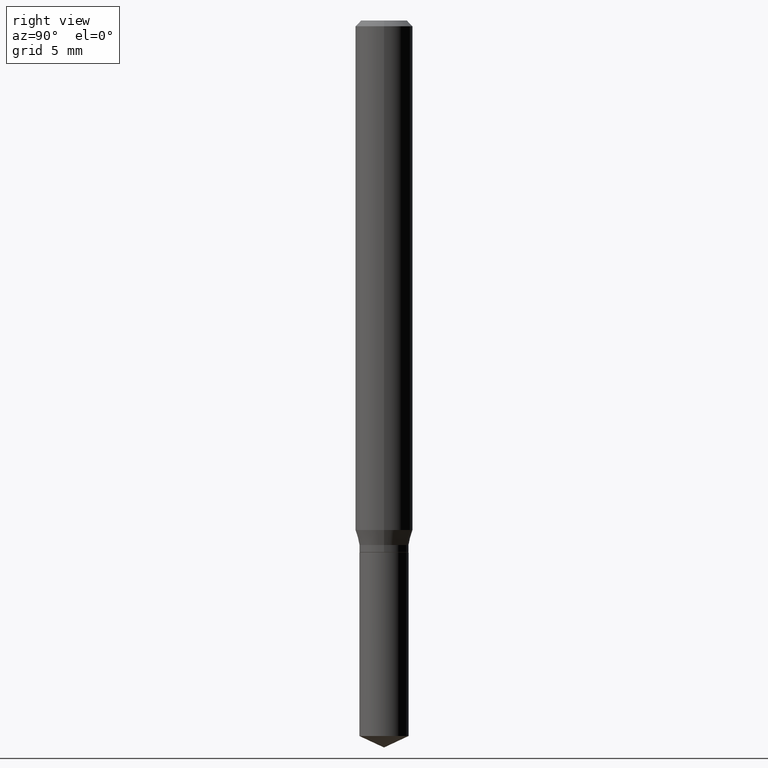
[diagram: clean part render]
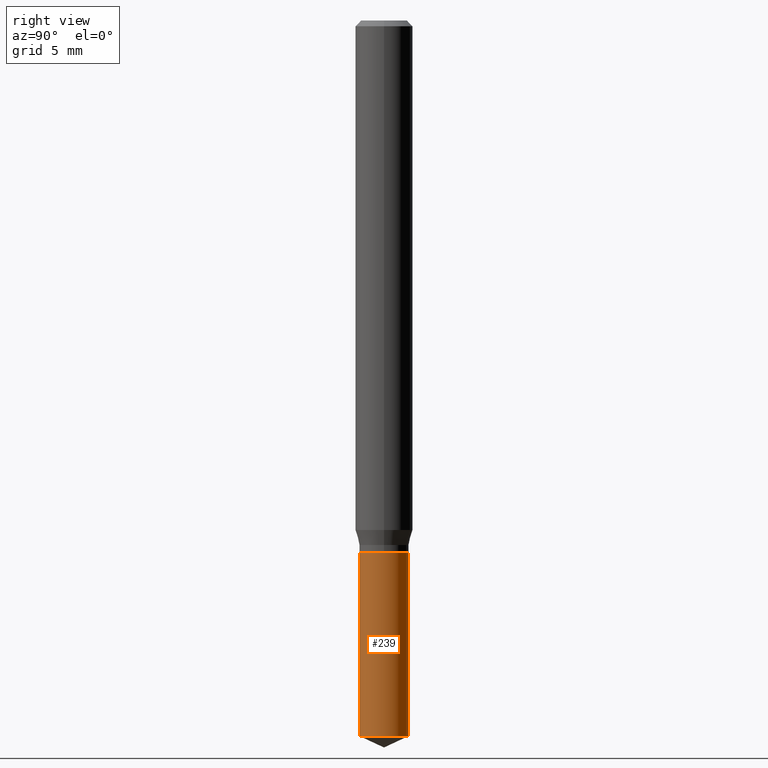
[diagram: same view with one face highlighted and labeled with its STEP entity id]
A machine part, right view. The second image highlights one B-rep face of the part: STEP entity #239.
In plain terms, the highlighted cylindrical surface (edge-blend (fillet) strip) has radius 1.2903 mm, axis along (-0, 0, 1).
Its self-contained STEP definition (entity closure, byte-faithful):
#28 = ORIENTED_EDGE ( 'NONE', *, *, #414, .F. ) ;
#40 = ORIENTED_EDGE ( 'NONE', *, *, #349, .T. ) ;
#65 = CARTESIAN_POINT ( 'NONE',  ( 3.600732822747846829E-29, -5.140902884622764989E-15, -1.472411570965726391 ) ) ;
#66 = DIRECTION ( 'NONE',  ( -2.445458899330790108E-29, 3.491495526022433599E-15, 1.000000000000000000 ) ) ;
#67 = VERTEX_POINT ( 'NONE', #393 ) ;
#85 = AXIS2_PLACEMENT_3D ( 'NONE', #304, #420, #340 ) ;
#99 = EDGE_CURVE ( 'NONE', #237, #67, #315, .T. ) ;
#107 = ORIENTED_EDGE ( 'NONE', *, *, #99, .T. ) ;
#110 = LINE ( 'NONE', #260, #307 ) ;
#112 = EDGE_LOOP ( 'NONE', ( #40, #107, #28, #366 ) ) ;
#113 = AXIS2_PLACEMENT_3D ( 'NONE', #209, #427, #450 ) ;
#124 = CARTESIAN_POINT ( 'NONE',  ( -3.547345040264262045E-16, -0.05080000000000513272, -1.472411570965725947 ) ) ;
#144 = VERTEX_POINT ( 'NONE', #482 ) ;
#148 = EDGE_CURVE ( 'NONE', #229, #144, #110, .T. ) ;
#181 = DIRECTION ( 'NONE',  ( -2.445458899330790108E-29, 3.491495526022433205E-15, 1.000000000000000000 ) ) ;
#203 = VECTOR ( 'NONE', #323, 39.37007874015748143 ) ;
#209 = CARTESIAN_POINT ( 'NONE',  ( 2.676565608369631794E-29, -3.821426325363822773E-15, -1.094499999999999806 ) ) ;
#229 = VERTEX_POINT ( 'NONE', #124 ) ;
#237 = VERTEX_POINT ( 'NONE', #243 ) ;
#239 = ADVANCED_FACE ( 'NONE', ( #430 ), #279, .T. ) ;
#243 = CARTESIAN_POINT ( 'NONE',  ( 3.609557097661668715E-16, 0.05079999999999484234, -1.472411570965726613 ) ) ;
#260 = CARTESIAN_POINT ( 'NONE',  ( -3.547345040264355229E-16, -0.05080000000000382127, -1.094499999999999806 ) ) ;
#269 = CIRCLE ( 'NONE', #362, 0.05079999999999999793 ) ;
#279 = CYLINDRICAL_SURFACE ( 'NONE', #113, 0.05079999999999999793 ) ;
#280 = CARTESIAN_POINT ( 'NONE',  ( 3.609557097661576024E-16, 0.05079999999999617460, -1.094500000000000028 ) ) ;
#304 = CARTESIAN_POINT ( 'NONE',  ( 2.676565608369631794E-29, -3.821426325363822773E-15, -1.094499999999999806 ) ) ;
#307 = VECTOR ( 'NONE', #66, 39.37007874015748143 ) ;
#315 = LINE ( 'NONE', #280, #203 ) ;
#323 = DIRECTION ( 'NONE',  ( -2.445458899330790108E-29, 3.491495526022433599E-15, 1.000000000000000000 ) ) ;
#340 = DIRECTION ( 'NONE',  ( -6.982962677686265922E-15, -1.000000000000000000, 2.688826765417582082E-15 ) ) ;
#349 = EDGE_CURVE ( 'NONE', #229, #237, #269, .T. ) ;
#362 = AXIS2_PLACEMENT_3D ( 'NONE', #65, #181, #483 ) ;
#366 = ORIENTED_EDGE ( 'NONE', *, *, #148, .F. ) ;
#393 = CARTESIAN_POINT ( 'NONE',  ( 3.609557097661669208E-16, 0.05079999999999617460, -1.094500000000000028 ) ) ;
#414 = EDGE_CURVE ( 'NONE', #144, #67, #443, .T. ) ;
#420 = DIRECTION ( 'NONE',  ( -2.445458899330790108E-29, 3.491495526022433205E-15, 1.000000000000000000 ) ) ;
#427 = DIRECTION ( 'NONE',  ( -2.445458899330790108E-29, 3.491495526022433205E-15, 1.000000000000000000 ) ) ;
#430 = FACE_OUTER_BOUND ( 'NONE', #112, .T. ) ;
#443 = CIRCLE ( 'NONE', #85, 0.05079999999999999793 ) ;
#450 = DIRECTION ( 'NONE',  ( -6.982962677686265922E-15, -1.000000000000000000, 2.688826765417582082E-15 ) ) ;
#482 = CARTESIAN_POINT ( 'NONE',  ( -3.547345040264355229E-16, -0.05080000000000382127, -1.094499999999999806 ) ) ;
#483 = DIRECTION ( 'NONE',  ( -6.982962677686265922E-15, -1.000000000000000000, 5.377653530835164164E-15 ) ) ;